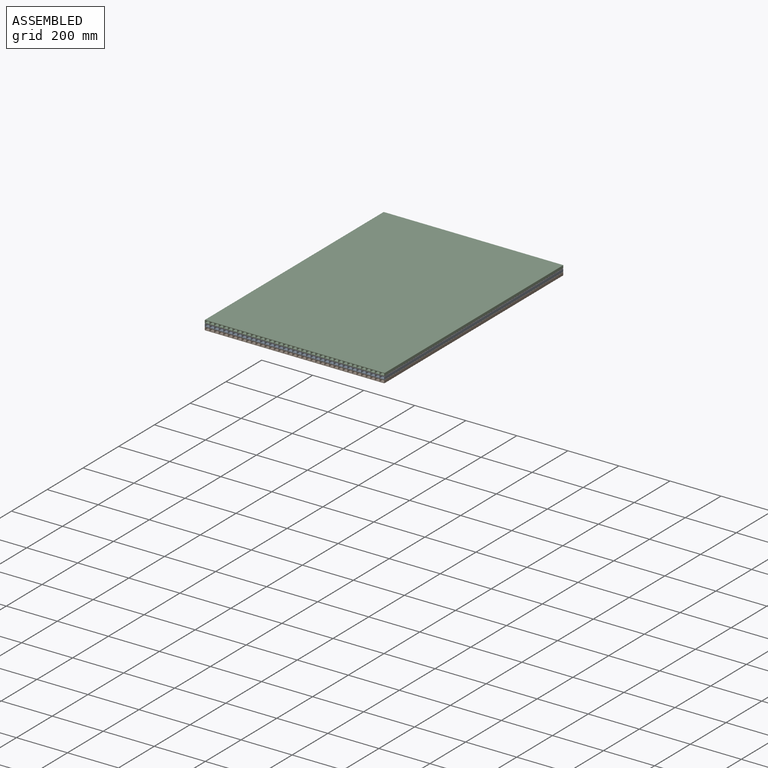
[diagram: assembled view]
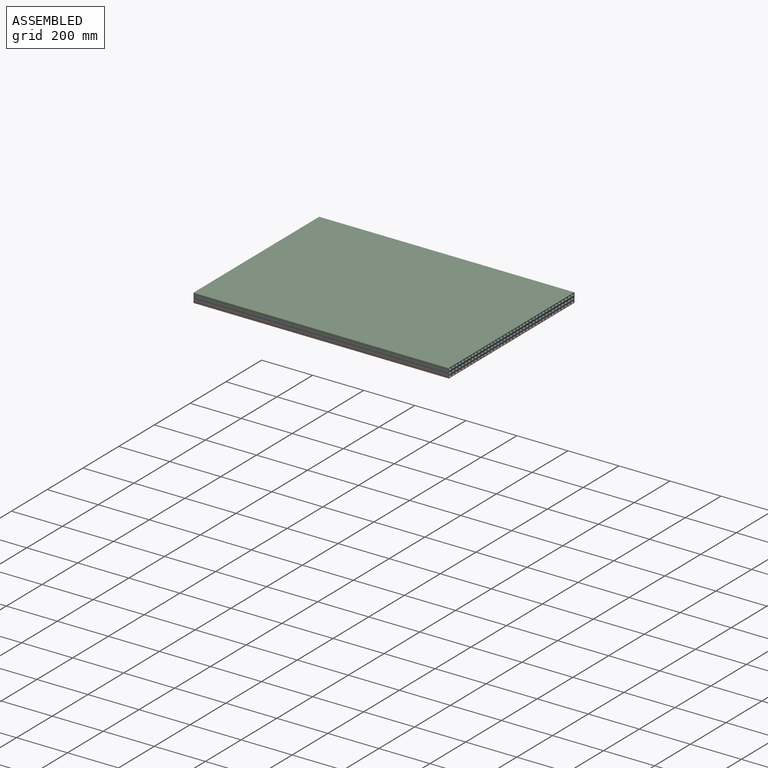
[diagram: assembled view, second angle]
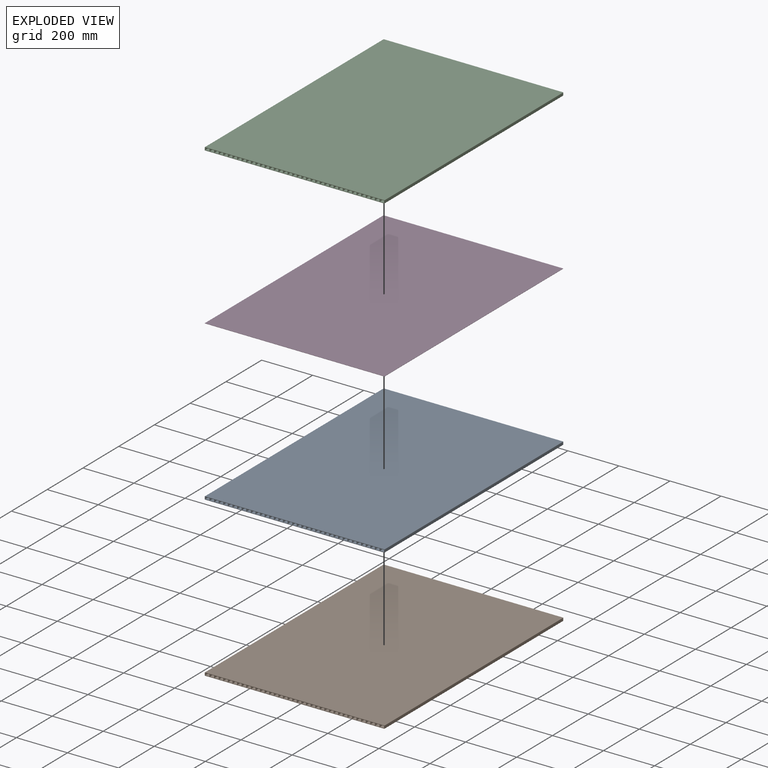
[diagram: exploded view]
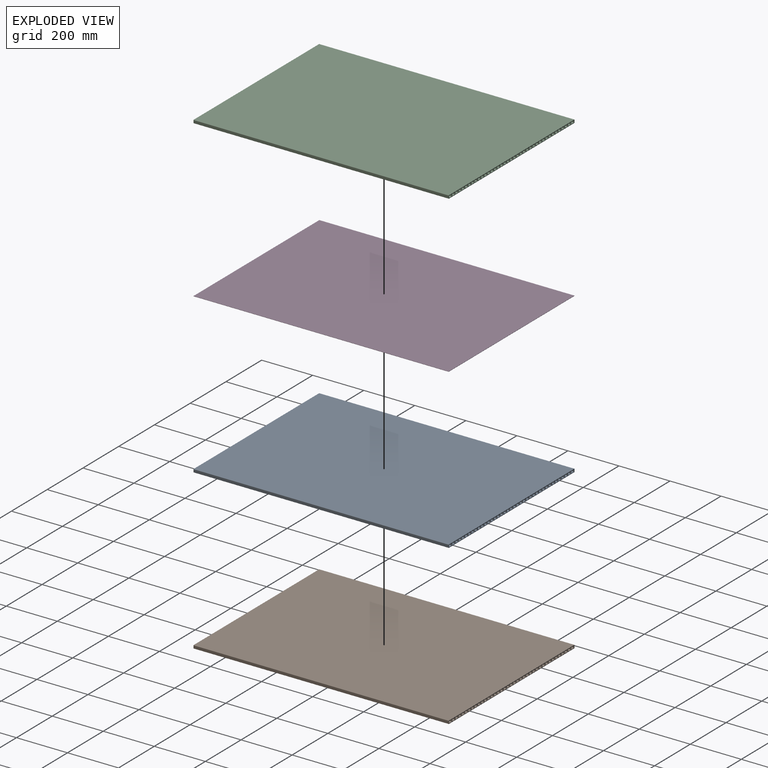
[diagram: exploded view, second angle]
ASSEMBLY  parts=4 mates=3
PART A: 166 faces, bbox 704x1000x12 mm
  f0: plane 704x12mm, normal (0,-1,0), area 3455.1mm2, adj f2,f3,f4,f5,f6,f7,f8,f9
  f1: plane 704x12mm, normal (0,1,0), area 3455.1mm2, adj f2,f3,f4,f5,f6,f7,f8,f9
  f2: plane 1000x702mm, normal (0,0,1), area 702000mm2, adj f0,f1,f162,f165
  f3: plane 1000x10mm, normal (-1,0,0), area 10000mm2, adj f0,f1,f162,f163
  f4: plane 1000x702mm, normal (0,0,-1), area 702000mm2, adj f0,f1,f163,f164
  f5: plane 1000x10mm, normal (1,0,0), area 10000mm2, adj f0,f1,f164,f165
  f6: plane 1000x16mm, normal (0,0,1), area 16000mm2, adj f0,f1,f7,f9
  f7: plane 1000x8mm, normal (-1,0,0), area 8000mm2, adj f0,f1,f6,f8
  f8: plane 1000x16mm, normal (0,0,-1), area 16000mm2, adj f0,f1,f7,f9
  f9: plane 1000x8mm, normal (1,0,0), area 8000mm2, adj f0,f1,f6,f8
  f10: plane 1000x8mm, normal (1,0,0), area 8000mm2, adj f0,f1,f11,f13
  f11: plane 1000x16mm, normal (0,0,1), area 16000mm2, adj f0,f1,f10,f12
  f12: plane 1000x8mm, normal (-1,0,0), area 8000mm2, adj f0,f1,f11,f13
  f13: plane 1000x16mm, normal (0,0,-1), area 16000mm2, adj f0,f1,f10,f12
  f14: plane 1000x8mm, normal (1,0,0), area 8000mm2, adj f0,f1,f15,f17
  f15: plane 1000x16mm, normal (0,0,1), area 16000mm2, adj f0,f1,f14,f16
  f16: plane 1000x8mm, normal (-1,0,0), area 8000mm2, adj f0,f1,f15,f17
  f17: plane 1000x16mm, normal (0,0,-1), area 16000mm2, adj f0,f1,f14,f16
  f18: plane 1000x8mm, normal (1,0,0), area 8000mm2, adj f0,f1,f19,f21
  f19: plane 1000x16mm, normal (0,0,1), area 16000mm2, adj f0,f1,f18,f20
  f20: plane 1000x8mm, normal (-1,0,0), area 8000mm2, adj f0,f1,f19,f21
  f21: plane 1000x16mm, normal (0,0,-1), area 16000mm2, adj f0,f1,f18,f20
  f22: plane 1000x8mm, normal (1,0,0), area 8000mm2, adj f0,f1,f23,f25
  f23: plane 1000x16mm, normal (0,0,1), area 16000mm2, adj f0,f1,f22,f24
  f24: plane 1000x8mm, normal (-1,0,0), area 8000mm2, adj f0,f1,f23,f25
  f25: plane 1000x16mm, normal (0,0,-1), area 16000mm2, adj f0,f1,f22,f24
  f26: plane 1000x8mm, normal (1,0,0), area 8000mm2, adj f0,f1,f27,f29
  f27: plane 1000x16mm, normal (0,0,1), area 16000mm2, adj f0,f1,f26,f28
  f28: plane 1000x8mm, normal (-1,0,0), area 8000mm2, adj f0,f1,f27,f29
  f29: plane 1000x16mm, normal (0,0,-1), area 16000mm2, adj f0,f1,f26,f28
  f30: plane 1000x8mm, normal (1,0,0), area 8000mm2, adj f0,f1,f31,f33
  f31: plane 1000x16mm, normal (0,0,1), area 16000mm2, adj f0,f1,f30,f32
  f32: plane 1000x8mm, normal (-1,0,0), area 8000mm2, adj f0,f1,f31,f33
  f33: plane 1000x16mm, normal (0,0,-1), area 16000mm2, adj f0,f1,f30,f32
  f34: plane 1000x8mm, normal (-1,0,0), area 8000mm2, adj f0,f1,f35,f37
  f35: plane 1000x16mm, normal (0,0,-1), area 16000mm2, adj f0,f1,f34,f36
  f36: plane 1000x8mm, normal (1,0,0), area 8000mm2, adj f0,f1,f35,f37
  f37: plane 1000x16mm, normal (0,0,1), area 16000mm2, adj f0,f1,f34,f36
  f38: plane 1000x8mm, normal (-1,0,0), area 8000mm2, adj f0,f1,f39,f41
  f39: plane 1000x16mm, normal (0,0,-1), area 16000mm2, adj f0,f1,f38,f40
  f40: plane 1000x8mm, normal (1,0,0), area 8000mm2, adj f0,f1,f39,f41
  f41: plane 1000x16mm, normal (0,0,1), area 16000mm2, adj f0,f1,f38,f40
  f42: plane 1000x8mm, normal (-1,0,0), area 8000mm2, adj f0,f1,f43,f45
  f43: plane 1000x16mm, normal (0,0,-1), area 16000mm2, adj f0,f1,f42,f44
  f44: plane 1000x8mm, normal (1,0,0), area 8000mm2, adj f0,f1,f43,f45
  f45: plane 1000x16mm, normal (0,0,1), area 16000mm2, adj f0,f1,f42,f44
  f46: plane 1000x8mm, normal (-1,0,0), area 8000mm2, adj f0,f1,f47,f49
  f47: plane 1000x16mm, normal (0,0,-1), area 16000mm2, adj f0,f1,f46,f48
  f48: plane 1000x8mm, normal (1,0,0), area 8000mm2, adj f0,f1,f47,f49
  f49: plane 1000x16mm, normal (0,0,1), area 16000mm2, adj f0,f1,f46,f48
  f50: plane 1000x8mm, normal (-1,0,0), area 8000mm2, adj f0,f1,f51,f53
  f51: plane 1000x16mm, normal (0,0,-1), area 16000mm2, adj f0,f1,f50,f52
  f52: plane 1000x8mm, normal (1,0,0), area 8000mm2, adj f0,f1,f51,f53
  f53: plane 1000x16mm, normal (0,0,1), area 16000mm2, adj f0,f1,f50,f52
  f54: plane 1000x8mm, normal (-1,0,0), area 8000mm2, adj f0,f1,f55,f57
  f55: plane 1000x16mm, normal (0,0,-1), area 16000mm2, adj f0,f1,f54,f56
  f56: plane 1000x8mm, normal (1,0,0), area 8000mm2, adj f0,f1,f55,f57
  f57: plane 1000x16mm, normal (0,0,1), area 16000mm2, adj f0,f1,f54,f56
  f58: plane 1000x8mm, normal (-1,0,0), area 8000mm2, adj f0,f1,f59,f61
  f59: plane 1000x16mm, normal (0,0,-1), area 16000mm2, adj f0,f1,f58,f60
  f60: plane 1000x8mm, normal (1,0,0), area 8000mm2, adj f0,f1,f59,f61
  f61: plane 1000x16mm, normal (0,0,1), area 16000mm2, adj f0,f1,f58,f60
  f62: plane 1000x8mm, normal (-1,0,0), area 8000mm2, adj f0,f1,f63,f65
  f63: plane 1000x16mm, normal (0,0,-1), area 16000mm2, adj f0,f1,f62,f64
  f64: plane 1000x8mm, normal (1,0,0), area 8000mm2, adj f0,f1,f63,f65
  f65: plane 1000x16mm, normal (0,0,1), area 16000mm2, adj f0,f1,f62,f64
  f66: plane 1000x8mm, normal (-1,0,0), area 8000mm2, adj f0,f1,f67,f69
  f67: plane 1000x16mm, normal (0,0,-1), area 16000mm2, adj f0,f1,f66,f68
  f68: plane 1000x8mm, normal (1,0,0), area 8000mm2, adj f0,f1,f67,f69
  f69: plane 1000x16mm, normal (0,0,1), area 16000mm2, adj f0,f1,f66,f68
  f70: plane 1000x8mm, normal (-1,0,0), area 8000mm2, adj f0,f1,f71,f73
  f71: plane 1000x16mm, normal (0,0,-1), area 16000mm2, adj f0,f1,f70,f72
  f72: plane 1000x8mm, normal (1,0,0), area 8000mm2, adj f0,f1,f71,f73
  f73: plane 1000x16mm, normal (0,0,1), area 16000mm2, adj f0,f1,f70,f72
  f74: plane 1000x8mm, normal (-1,0,0), area 8000mm2, adj f0,f1,f75,f77
  f75: plane 1000x16mm, normal (0,0,-1), area 16000mm2, adj f0,f1,f74,f76
  f76: plane 1000x8mm, normal (1,0,0), area 8000mm2, adj f0,f1,f75,f77
  f77: plane 1000x16mm, normal (0,0,1), area 16000mm2, adj f0,f1,f74,f76
  f78: plane 1000x8mm, normal (-1,0,0), area 8000mm2, adj f0,f1,f79,f81
  f79: plane 1000x16mm, normal (0,0,-1), area 16000mm2, adj f0,f1,f78,f80
  f80: plane 1000x8mm, normal (1,0,0), area 8000mm2, adj f0,f1,f79,f81
  f81: plane 1000x16mm, normal (0,0,1), area 16000mm2, adj f0,f1,f78,f80
  f82: plane 1000x8mm, normal (-1,0,0), area 8000mm2, adj f0,f1,f83,f85
  f83: plane 1000x16mm, normal (0,0,-1), area 16000mm2, adj f0,f1,f82,f84
  f84: plane 1000x8mm, normal (1,0,0), area 8000mm2, adj f0,f1,f83,f85
  f85: plane 1000x16mm, normal (0,0,1), area 16000mm2, adj f0,f1,f82,f84
  f86: plane 1000x8mm, normal (-1,0,0), area 8000mm2, adj f0,f1,f87,f89
  f87: plane 1000x16mm, normal (0,0,-1), area 16000mm2, adj f0,f1,f86,f88
  f88: plane 1000x8mm, normal (1,0,0), area 8000mm2, adj f0,f1,f87,f89
  f89: plane 1000x16mm, normal (0,0,1), area 16000mm2, adj f0,f1,f86,f88
  f90: plane 1000x8mm, normal (-1,0,0), area 8000mm2, adj f0,f1,f91,f93
  f91: plane 1000x16mm, normal (0,0,-1), area 16000mm2, adj f0,f1,f90,f92
  f92: plane 1000x8mm, normal (1,0,0), area 8000mm2, adj f0,f1,f91,f93
  f93: plane 1000x16mm, normal (0,0,1), area 16000mm2, adj f0,f1,f90,f92
  f94: plane 1000x8mm, normal (-1,0,0), area 8000mm2, adj f0,f1,f95,f97
  f95: plane 1000x16mm, normal (0,0,-1), area 16000mm2, adj f0,f1,f94,f96
  f96: plane 1000x8mm, normal (1,0,0), area 8000mm2, adj f0,f1,f95,f97
  f97: plane 1000x16mm, normal (0,0,1), area 16000mm2, adj f0,f1,f94,f96
  f98: plane 1000x8mm, normal (1,0,0), area 8000mm2, adj f0,f1,f99,f101
  f99: plane 1000x16mm, normal (0,0,1), area 16000mm2, adj f0,f1,f98,f100
  f100: plane 1000x8mm, normal (-1,0,0), area 8000mm2, adj f0,f1,f99,f101
  f101: plane 1000x16mm, normal (0,0,-1), area 16000mm2, adj f0,f1,f98,f100
  f102: plane 1000x8mm, normal (1,0,0), area 8000mm2, adj f0,f1,f103,f105
  f103: plane 1000x16mm, normal (0,0,1), area 16000mm2, adj f0,f1,f102,f104
  f104: plane 1000x8mm, normal (-1,0,0), area 8000mm2, adj f0,f1,f103,f105
  f105: plane 1000x16mm, normal (0,0,-1), area 16000mm2, adj f0,f1,f102,f104
  f106: plane 1000x8mm, normal (1,0,0), area 8000mm2, adj f0,f1,f107,f109
  f107: plane 1000x16mm, normal (0,0,1), area 16000mm2, adj f0,f1,f106,f108
  f108: plane 1000x8mm, normal (-1,0,0), area 8000mm2, adj f0,f1,f107,f109
  f109: plane 1000x16mm, normal (0,0,-1), area 16000mm2, adj f0,f1,f106,f108
  f110: plane 1000x8mm, normal (1,0,0), area 8000mm2, adj f0,f1,f111,f113
  f111: plane 1000x16mm, normal (0,0,1), area 16000mm2, adj f0,f1,f110,f112
  f112: plane 1000x8mm, normal (-1,0,0), area 8000mm2, adj f0,f1,f111,f113
  f113: plane 1000x16mm, normal (0,0,-1), area 16000mm2, adj f0,f1,f110,f112
  f114: plane 1000x8mm, normal (1,0,0), area 8000mm2, adj f0,f1,f115,f117
  f115: plane 1000x16mm, normal (0,0,1), area 16000mm2, adj f0,f1,f114,f116
  f116: plane 1000x8mm, normal (-1,0,0), area 8000mm2, adj f0,f1,f115,f117
  f117: plane 1000x16mm, normal (0,0,-1), area 16000mm2, adj f0,f1,f114,f116
  f118: plane 1000x8mm, normal (1,0,0), area 8000mm2, adj f0,f1,f119,f121
  f119: plane 1000x16mm, normal (0,0,1), area 16000mm2, adj f0,f1,f118,f120
  f120: plane 1000x8mm, normal (-1,0,0), area 8000mm2, adj f0,f1,f119,f121
  f121: plane 1000x16mm, normal (0,0,-1), area 16000mm2, adj f0,f1,f118,f120
  f122: plane 1000x8mm, normal (1,0,0), area 8000mm2, adj f0,f1,f123,f125
  f123: plane 1000x16mm, normal (0,0,1), area 16000mm2, adj f0,f1,f122,f124
  f124: plane 1000x8mm, normal (-1,0,0), area 8000mm2, adj f0,f1,f123,f125
  f125: plane 1000x16mm, normal (0,0,-1), area 16000mm2, adj f0,f1,f122,f124
  f126: plane 1000x8mm, normal (1,0,0), area 8000mm2, adj f0,f1,f127,f129
  f127: plane 1000x16mm, normal (0,0,1), area 16000mm2, adj f0,f1,f126,f128
  f128: plane 1000x8mm, normal (-1,0,0), area 8000mm2, adj f0,f1,f127,f129
  f129: plane 1000x16mm, normal (0,0,-1), area 16000mm2, adj f0,f1,f126,f128
  f130: plane 1000x8mm, normal (1,0,0), area 8000mm2, adj f0,f1,f131,f133
  f131: plane 1000x16mm, normal (0,0,1), area 16000mm2, adj f0,f1,f130,f132
  f132: plane 1000x8mm, normal (-1,0,0), area 8000mm2, adj f0,f1,f131,f133
  f133: plane 1000x16mm, normal (0,0,-1), area 16000mm2, adj f0,f1,f130,f132
  f134: plane 1000x8mm, normal (1,0,0), area 8000mm2, adj f0,f1,f135,f137
  f135: plane 1000x16mm, normal (0,0,1), area 16000mm2, adj f0,f1,f134,f136
  f136: plane 1000x8mm, normal (-1,0,0), area 8000mm2, adj f0,f1,f135,f137
  f137: plane 1000x16mm, normal (0,0,-1), area 16000mm2, adj f0,f1,f134,f136
  f138: plane 1000x8mm, normal (1,0,0), area 8000mm2, adj f0,f1,f139,f141
  f139: plane 1000x16mm, normal (0,0,1), area 16000mm2, adj f0,f1,f138,f140
  f140: plane 1000x8mm, normal (-1,0,0), area 8000mm2, adj f0,f1,f139,f141
  f141: plane 1000x16mm, normal (0,0,-1), area 16000mm2, adj f0,f1,f138,f140
  f142: plane 1000x8mm, normal (1,0,0), area 8000mm2, adj f0,f1,f143,f145
  f143: plane 1000x16mm, normal (0,0,1), area 16000mm2, adj f0,f1,f142,f144
  f144: plane 1000x8mm, normal (-1,0,0), area 8000mm2, adj f0,f1,f143,f145
  f145: plane 1000x16mm, normal (0,0,-1), area 16000mm2, adj f0,f1,f142,f144
  f146: plane 1000x8mm, normal (-1,0,0), area 8000mm2, adj f0,f1,f147,f149
  f147: plane 1000x16mm, normal (0,0,-1), area 16000mm2, adj f0,f1,f146,f148
  f148: plane 1000x8mm, normal (1,0,0), area 8000mm2, adj f0,f1,f147,f149
  f149: plane 1000x16mm, normal (0,0,1), area 16000mm2, adj f0,f1,f146,f148
  f150: plane 1000x8mm, normal (-1,0,0), area 8000mm2, adj f0,f1,f151,f153
  f151: plane 1000x16mm, normal (0,0,-1), area 16000mm2, adj f0,f1,f150,f152
  f152: plane 1000x8mm, normal (1,0,0), area 8000mm2, adj f0,f1,f151,f153
  f153: plane 1000x16mm, normal (0,0,1), area 16000mm2, adj f0,f1,f150,f152
  f154: plane 1000x8mm, normal (-1,0,0), area 8000mm2, adj f0,f1,f155,f157
  f155: plane 1000x16mm, normal (0,0,-1), area 16000mm2, adj f0,f1,f154,f156
  f156: plane 1000x8mm, normal (1,0,0), area 8000mm2, adj f0,f1,f155,f157
  f157: plane 1000x16mm, normal (0,0,1), area 16000mm2, adj f0,f1,f154,f156
  f158: plane 1000x8mm, normal (1,0,0), area 8000mm2, adj f0,f1,f159,f161
  f159: plane 1000x16mm, normal (0,0,1), area 16000mm2, adj f0,f1,f158,f160
  f160: plane 1000x8mm, normal (-1,0,0), area 8000mm2, adj f0,f1,f159,f161
  f161: plane 1000x16mm, normal (0,0,-1), area 16000mm2, adj f0,f1,f158,f160
  f162: cylinder r=1mm len=1000mm, axis (0,-1,0), area 1570.8mm2, adj f0,f1,f2,f3
  f163: cylinder r=1mm len=1000mm, axis (0,1,0), area 1570.8mm2, adj f0,f1,f3,f4
  f164: cylinder r=1mm len=1000mm, axis (0,-1,0), area 1570.8mm2, adj f0,f1,f4,f5
  f165: cylinder r=1mm len=1000mm, axis (0,1,0), area 1570.8mm2, adj f0,f1,f2,f5
PART B: same geometry as A
PART C: same geometry as A
PART D: 6 faces, bbox 704x1000x1 mm
  f0: plane 1000x1mm, normal (1,0,0), area 1000mm2, adj f1,f3,f4,f5
  f1: plane 1000x704mm, normal (0,0,1), area 704000mm2, adj f0,f2,f4,f5
  f2: plane 1000x1mm, normal (-1,0,0), area 1000mm2, adj f1,f3,f4,f5
  f3: plane 1000x704mm, normal (0,0,-1), area 704000mm2, adj f0,f2,f4,f5
  f4: plane 704x1mm, normal (0,-1,0), area 704mm2, adj f0,f1,f2,f3
  f5: plane 704x1mm, normal (0,1,0), area 704mm2, adj f0,f1,f2,f3
PLACE A at identity fixed
PLACE B t=(0,0,-12)mm
PLACE C t=(0,0,13)mm
PLACE D t=(0,0,6.5)mm
MATE fastened B.f2 <-> A.f4  axis (0,0,1) through (0,0,-6)mm
MATE fastened D.f1 <-> C.f4  axis (0,0,1) through (0,0,7)mm
MATE fastened A.f2 <-> D.f3  axis (0,0,1) through (0,0,6)mm
